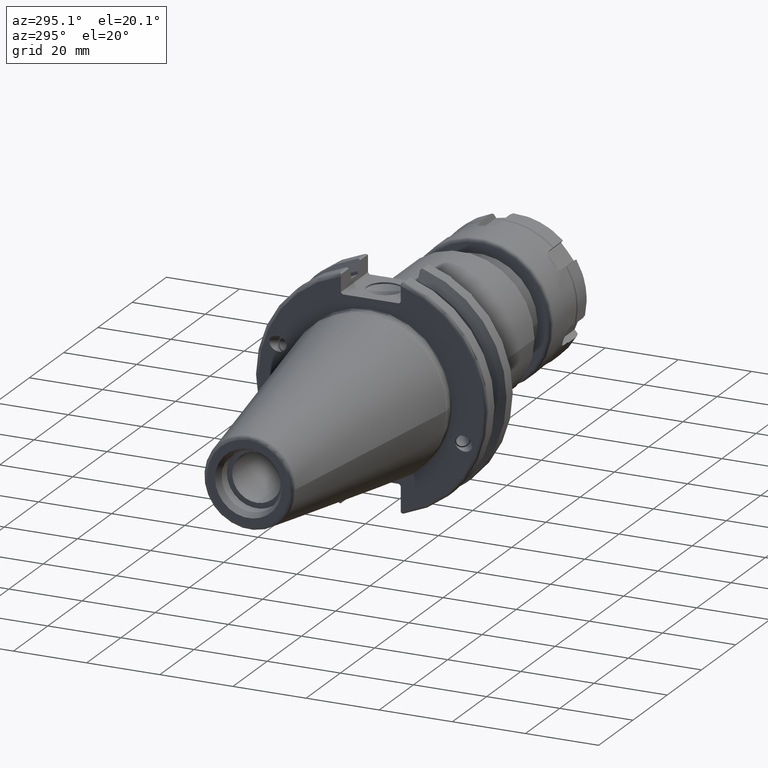
[diagram: clean part render]
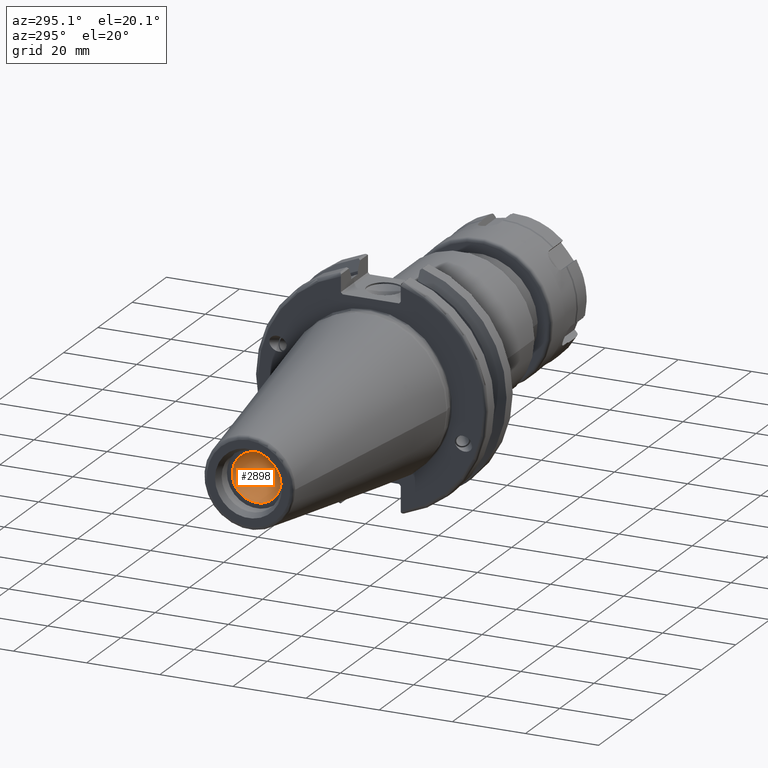
[diagram: same view with one face highlighted and labeled with its STEP entity id]
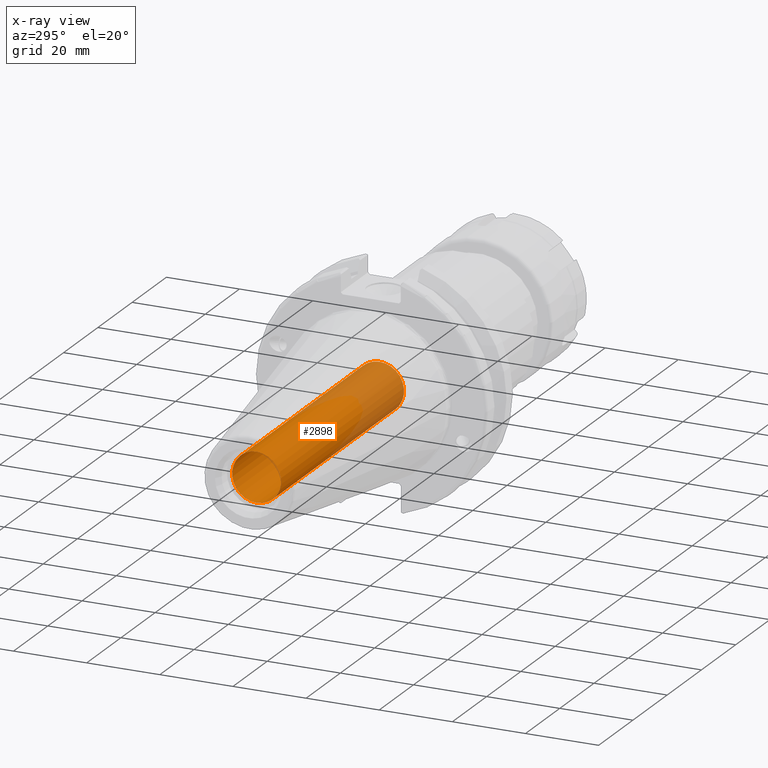
[diagram: x-ray of the same camera — body ghosted, the highlighted face saturated]
A machine part, auxiliary view. The second image highlights one B-rep face of the part: STEP entity #2898.
The next image is the same camera in x-ray: the body ghosted, the highlighted face saturated — about 32% of this face is hidden behind the body in this view.
In plain terms, the highlighted cylindrical surface (bore or boss wall) has radius 6.6929 mm, axis along (-1, 0, 0).
Its self-contained STEP definition (entity closure, byte-faithful):
#439=CYLINDRICAL_SURFACE('',#3161,6.6929);
#487=FACE_OUTER_BOUND('',#644,.T.);
#644=EDGE_LOOP('',(#2034,#2035,#2036,#2037,#2038));
#816=LINE('',#4483,#1006);
#1006=VECTOR('',#3524,6.6929);
#1195=CIRCLE('',#3157,6.6929);
#1196=CIRCLE('',#3158,6.6929);
#1198=CIRCLE('',#3162,6.6929);
#1328=VERTEX_POINT('',#4395);
#1329=VERTEX_POINT('',#4397);
#1335=VERTEX_POINT('',#4481);
#1604=EDGE_CURVE('',#1329,#1328,#1195,.T.);
#1605=EDGE_CURVE('',#1328,#1329,#1196,.T.);
#1612=EDGE_CURVE('',#1335,#1335,#1198,.T.);
#1613=EDGE_CURVE('',#1335,#1329,#816,.T.);
#2034=ORIENTED_EDGE('',*,*,#1612,.F.);
#2035=ORIENTED_EDGE('',*,*,#1613,.T.);
#2036=ORIENTED_EDGE('',*,*,#1604,.T.);
#2037=ORIENTED_EDGE('',*,*,#1605,.T.);
#2038=ORIENTED_EDGE('',*,*,#1613,.F.);
#2898=ADVANCED_FACE('',(#487),#439,.F.);
#3157=AXIS2_PLACEMENT_3D('',#4398,#3511,#3512);
#3158=AXIS2_PLACEMENT_3D('',#4399,#3513,#3514);
#3161=AXIS2_PLACEMENT_3D('',#4480,#3520,#3521);
#3162=AXIS2_PLACEMENT_3D('',#4482,#3522,#3523);
#3511=DIRECTION('center_axis',(1.,0.,0.));
#3512=DIRECTION('ref_axis',(0.,0.,1.));
#3513=DIRECTION('center_axis',(1.,0.,0.));
#3514=DIRECTION('ref_axis',(0.,0.,1.));
#3520=DIRECTION('center_axis',(-1.,0.,0.));
#3521=DIRECTION('ref_axis',(0.,0.,1.));
#3522=DIRECTION('center_axis',(1.,0.,0.));
#3523=DIRECTION('ref_axis',(0.,0.,1.));
#3524=DIRECTION('',(1.,0.,0.));
#4395=CARTESIAN_POINT('',(8.29032352286654,-8.19643856201332E-16,6.6929));
#4397=CARTESIAN_POINT('',(8.29032352286655,8.19643856201332E-16,-6.6929));
#4398=CARTESIAN_POINT('Origin',(8.29032352286655,0.,0.));
#4399=CARTESIAN_POINT('Origin',(8.29032352286655,0.,0.));
#4480=CARTESIAN_POINT('Origin',(104.20959665782,0.,0.));
#4481=CARTESIAN_POINT('',(-63.45,8.19643856201332E-16,-6.6929));
#4482=CARTESIAN_POINT('Origin',(-63.45,0.,0.));
#4483=CARTESIAN_POINT('',(104.20959665782,-8.19643856201332E-16,-6.6929));